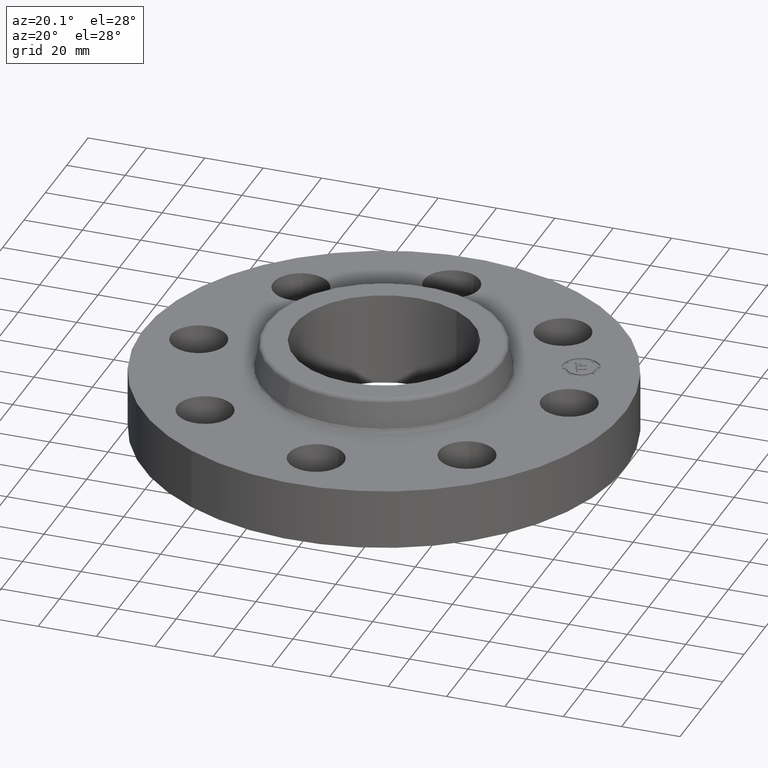
[diagram: clean part render]
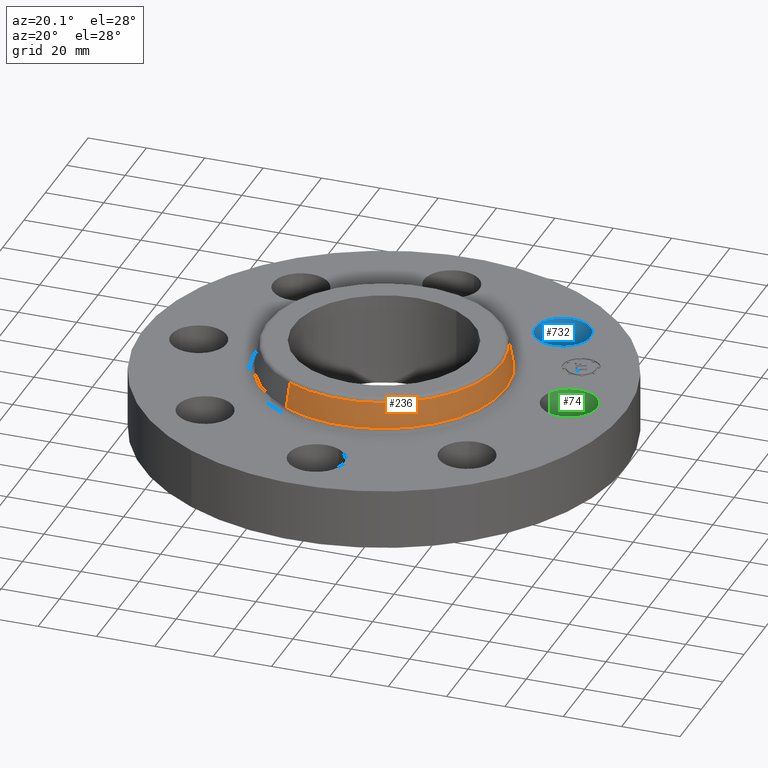
[diagram: same view with three faces highlighted in distinct colors, each labeled with its STEP entity id]
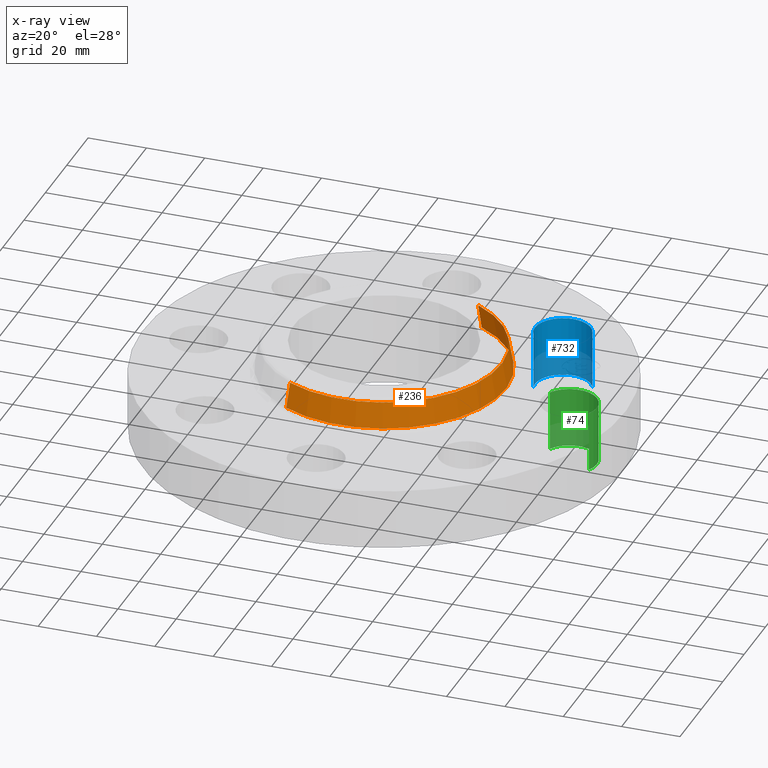
[diagram: x-ray of the same camera — body ghosted, the three highlighted faces saturated]
A machine part, auxiliary view with three faces highlighted in distinct colors.
The next image is the same camera in x-ray (body ghosted, the three faces saturated) — at least one of them is partly hidden behind the body in this view.
Their STEP definitions:

[orange] entity #236 — the highlighted conical surface has half-angle 10 deg.
#172=AXIS2_PLACEMENT_3D('Circle Axis2P3D',#170,#171,$) ;
#209=AXIS2_PLACEMENT_3D('Cone Axis2P3D',#206,#207,#208) ;
#220=AXIS2_PLACEMENT_3D('Circle Axis2P3D',#218,#219,$) ;
#167=CARTESIAN_POINT('Vertex',(0.789257894706,1.44472688552,0.859581109343)) ;
#170=CARTESIAN_POINT('Axis2P3D Location',(0.,0.,0.859581109343)) ;
#174=CARTESIAN_POINT('Vertex',(-0.789257894706,-1.44472688552,0.859581109343)) ;
#206=CARTESIAN_POINT('Axis2P3D Location',(0.,0.,1.20041889066)) ;
#211=CARTESIAN_POINT('Line Origine',(0.7748514217,1.41835601357,1.03)) ;
#215=CARTESIAN_POINT('Vertex',(0.760444948694,1.39198514162,1.20041889066)) ;
#218=CARTESIAN_POINT('Axis2P3D Location',(0.,0.,1.20041889066)) ;
#222=CARTESIAN_POINT('Vertex',(-0.760444948694,-1.39198514162,1.20041889066)) ;
#225=CARTESIAN_POINT('Line Origine',(-0.7748514217,-1.41835601357,1.03)) ;
#171=DIRECTION('Axis2P3D Direction',(0.,0.,-0.0393700787402)) ;
#207=DIRECTION('Axis2P3D Direction',(0.,0.,-0.0393700787402)) ;
#208=DIRECTION('Axis2P3D XDirection',(-0.0188750212049,-0.0345504945626,0.)) ;
#212=DIRECTION('Vector Direction',(0.00327761303565,0.00599963041829,-0.03877195878)) ;
#219=DIRECTION('Axis2P3D Direction',(0.,0.,-0.0393700787402)) ;
#226=DIRECTION('Vector Direction',(-0.00327761303565,-0.00599963041829,-0.03877195878)) ;
#213=VECTOR('Line Direction',#212,0.0393700787402) ;
#227=VECTOR('Line Direction',#226,0.0393700787402) ;
#231=ORIENTED_EDGE('',*,*,#176,.F.) ;
#232=ORIENTED_EDGE('',*,*,#217,.T.) ;
#233=ORIENTED_EDGE('',*,*,#224,.T.) ;
#234=ORIENTED_EDGE('',*,*,#229,.F.) ;
#236=ADVANCED_FACE('PartBody',(#235),#210,.T.) ;
#173=CIRCLE('generated circle',#172,1.6462575127) ;
#221=CIRCLE('generated circle',#220,1.5861586158) ;
#210=CONICAL_SURFACE('Cone',#209,1.5861586158,0.174532925199) ;
#176=EDGE_CURVE('',#168,#175,#173,.T.) ;
#217=EDGE_CURVE('',#168,#216,#214,.F.) ;
#224=EDGE_CURVE('',#216,#223,#221,.T.) ;
#229=EDGE_CURVE('',#175,#223,#228,.F.) ;
#230=EDGE_LOOP('',(#231,#232,#233,#234)) ;
#235=FACE_OUTER_BOUND('',#230,.T.) ;
#214=LINE('Line',#211,#213) ;
#228=LINE('Line',#225,#227) ;
#168=VERTEX_POINT('',#167) ;
#175=VERTEX_POINT('',#174) ;
#216=VERTEX_POINT('',#215) ;
#223=VERTEX_POINT('',#222) ;

[blue] entity #732 — the highlighted cylindrical surface (edge-blend (fillet) strip) has radius 9.525 mm, axis along (0, 0, -1).
#513=AXIS2_PLACEMENT_3D('Circle Axis2P3D',#511,#512,$) ;
#705=AXIS2_PLACEMENT_3D('Cylinder Axis2P3D',#702,#703,#704) ;
#723=AXIS2_PLACEMENT_3D('Circle Axis2P3D',#721,#722,$) ;
#511=CARTESIAN_POINT('Axis2P3D Location',(1.76776695297,1.76776695297,0.)) ;
#515=CARTESIAN_POINT('Vertex',(1.40793584173,1.66218962879,0.)) ;
#517=CARTESIAN_POINT('Vertex',(2.12759806422,1.87334427715,0.)) ;
#702=CARTESIAN_POINT('Axis2P3D Location',(1.76776695297,1.76776695297,0.806062992129)) ;
#707=CARTESIAN_POINT('Line Origine',(1.40793584173,1.66218962879,0.405000000002)) ;
#711=CARTESIAN_POINT('Vertex',(1.40793584173,1.66218962879,0.810000000003)) ;
#714=CARTESIAN_POINT('Line Origine',(2.12759806422,1.87334427715,0.405000000002)) ;
#718=CARTESIAN_POINT('Vertex',(2.12759806422,1.87334427715,0.810000000003)) ;
#721=CARTESIAN_POINT('Axis2P3D Location',(1.76776695297,1.76776695297,0.810000000003)) ;
#512=DIRECTION('Axis2P3D Direction',(0.,0.,-0.0393700787402)) ;
#703=DIRECTION('Axis2P3D Direction',(0.,0.,-0.0393700787402)) ;
#704=DIRECTION('Axis2P3D XDirection',(0.0377775444876,0.0110842335096,0.)) ;
#708=DIRECTION('Vector Direction',(0.,0.,-0.0393700787402)) ;
#715=DIRECTION('Vector Direction',(0.,0.,-0.0393700787402)) ;
#722=DIRECTION('Axis2P3D Direction',(0.,0.,-0.0393700787402)) ;
#709=VECTOR('Line Direction',#708,0.0393700787402) ;
#716=VECTOR('Line Direction',#715,0.0393700787402) ;
#727=ORIENTED_EDGE('',*,*,#713,.F.) ;
#728=ORIENTED_EDGE('',*,*,#519,.T.) ;
#729=ORIENTED_EDGE('',*,*,#720,.T.) ;
#730=ORIENTED_EDGE('',*,*,#725,.F.) ;
#732=ADVANCED_FACE('PartBody',(#731),#706,.F.) ;
#514=CIRCLE('generated circle',#513,0.375000000001) ;
#724=CIRCLE('generated circle',#723,0.375000000001) ;
#706=CYLINDRICAL_SURFACE('generated cylinder',#705,0.375000000001) ;
#519=EDGE_CURVE('',#516,#518,#514,.T.) ;
#713=EDGE_CURVE('',#516,#712,#710,.F.) ;
#720=EDGE_CURVE('',#518,#719,#717,.F.) ;
#725=EDGE_CURVE('',#712,#719,#724,.T.) ;
#726=EDGE_LOOP('',(#727,#728,#729,#730)) ;
#731=FACE_OUTER_BOUND('',#726,.T.) ;
#710=LINE('Line',#707,#709) ;
#717=LINE('Line',#714,#716) ;
#516=VERTEX_POINT('',#515) ;
#518=VERTEX_POINT('',#517) ;
#712=VERTEX_POINT('',#711) ;
#719=VERTEX_POINT('',#718) ;

[green] entity #74 — the highlighted cylindrical surface (edge-blend (fillet) strip) has radius 9.525 mm, axis along (0, -0, -1).
#38=AXIS2_PLACEMENT_3D('Cylinder Axis2P3D',#35,#36,#37) ;
#51=AXIS2_PLACEMENT_3D('Circle Axis2P3D',#49,#50,$) ;
#65=AXIS2_PLACEMENT_3D('Circle Axis2P3D',#63,#64,$) ;
#35=CARTESIAN_POINT('Axis2P3D Location',(2.50000000001,0.,0.806062992129)) ;
#40=CARTESIAN_POINT('Line Origine',(2.1709065393,0.179784576977,0.405000000002)) ;
#44=CARTESIAN_POINT('Vertex',(2.1709065393,0.179784576977,0.)) ;
#46=CARTESIAN_POINT('Vertex',(2.1709065393,0.179784576977,0.810000000003)) ;
#49=CARTESIAN_POINT('Axis2P3D Location',(2.50000000001,0.,0.)) ;
#53=CARTESIAN_POINT('Vertex',(2.82909346072,-0.179784576977,0.)) ;
#56=CARTESIAN_POINT('Line Origine',(2.82909346072,-0.179784576977,0.405000000002)) ;
#60=CARTESIAN_POINT('Vertex',(2.82909346072,-0.179784576977,0.810000000003)) ;
#63=CARTESIAN_POINT('Axis2P3D Location',(2.50000000001,0.,0.810000000003)) ;
#36=DIRECTION('Axis2P3D Direction',(0.,-0.,-0.0393700787402)) ;
#37=DIRECTION('Axis2P3D XDirection',(0.0345504945626,-0.0188750212049,0.)) ;
#41=DIRECTION('Vector Direction',(0.,0.,-0.0393700787402)) ;
#50=DIRECTION('Axis2P3D Direction',(0.,-0.,-0.0393700787402)) ;
#57=DIRECTION('Vector Direction',(0.,0.,-0.0393700787402)) ;
#64=DIRECTION('Axis2P3D Direction',(0.,-0.,-0.0393700787402)) ;
#42=VECTOR('Line Direction',#41,0.0393700787402) ;
#58=VECTOR('Line Direction',#57,0.0393700787402) ;
#69=ORIENTED_EDGE('',*,*,#48,.F.) ;
#70=ORIENTED_EDGE('',*,*,#55,.T.) ;
#71=ORIENTED_EDGE('',*,*,#62,.T.) ;
#72=ORIENTED_EDGE('',*,*,#67,.F.) ;
#74=ADVANCED_FACE('PartBody',(#73),#39,.F.) ;
#52=CIRCLE('generated circle',#51,0.375000000002) ;
#66=CIRCLE('generated circle',#65,0.375000000002) ;
#39=CYLINDRICAL_SURFACE('generated cylinder',#38,0.375000000002) ;
#48=EDGE_CURVE('',#45,#47,#43,.F.) ;
#55=EDGE_CURVE('',#45,#54,#52,.T.) ;
#62=EDGE_CURVE('',#54,#61,#59,.F.) ;
#67=EDGE_CURVE('',#47,#61,#66,.T.) ;
#68=EDGE_LOOP('',(#69,#70,#71,#72)) ;
#73=FACE_OUTER_BOUND('',#68,.T.) ;
#43=LINE('Line',#40,#42) ;
#59=LINE('Line',#56,#58) ;
#45=VERTEX_POINT('',#44) ;
#47=VERTEX_POINT('',#46) ;
#54=VERTEX_POINT('',#53) ;
#61=VERTEX_POINT('',#60) ;